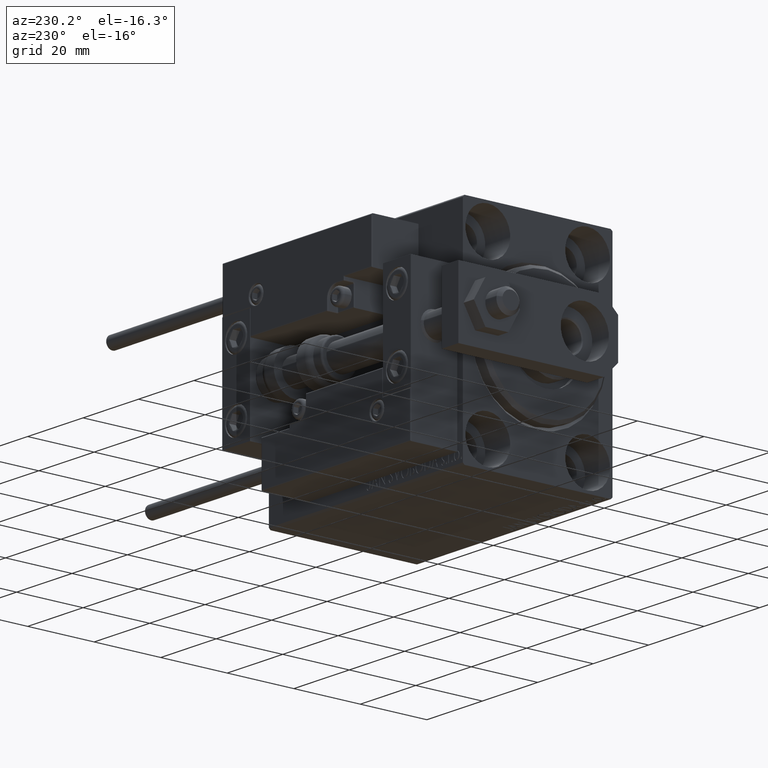
[diagram: clean part render]
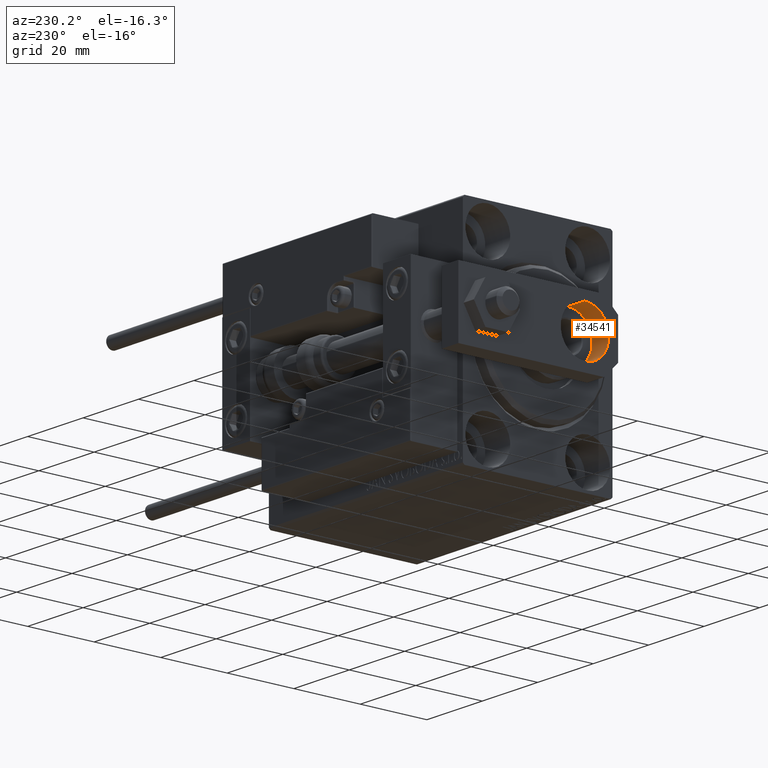
[diagram: same view with one face highlighted and labeled with its STEP entity id]
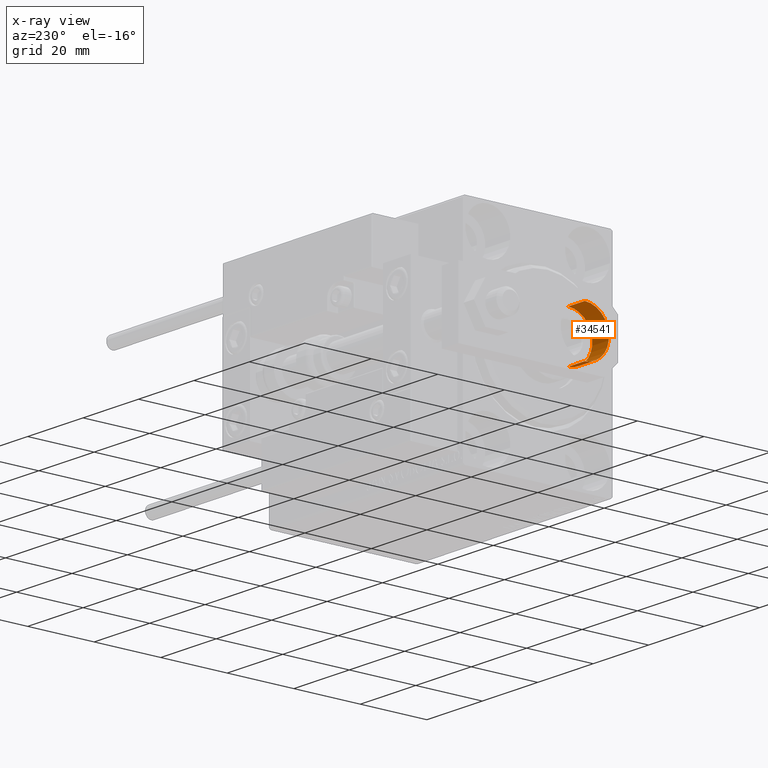
[diagram: x-ray of the same camera — body ghosted, the highlighted face saturated]
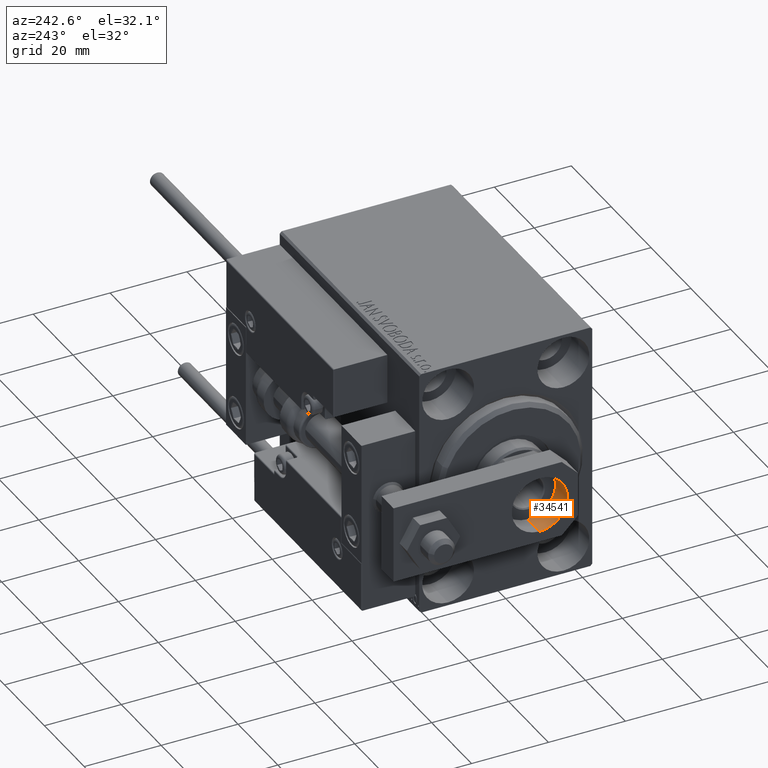
[diagram: same view with one face highlighted and labeled with its STEP entity id]
A machine part, auxiliary view. The second image highlights one B-rep face of the part: STEP entity #34541.
The next image is the same camera in x-ray: the body ghosted, the highlighted face saturated — about 0% of this face is hidden behind the body in this view.
A second angle (auxiliary view) of the same face is appended — the face is thin or edge-on in the first view.
In plain terms, the highlighted cylindrical surface (edge-blend (fillet) strip) has radius 7.25 mm, axis along (1, -0, -0).
Its self-contained STEP definition (entity closure, byte-faithful):
#53 = CIRCLE ( 'NONE', #39727, 7.250000000000000000 ) ;
#642 = CARTESIAN_POINT ( 'NONE',  ( -7.250000000000000000, 10.00000000000000178, 0.000000000000000000 ) ) ;
#727 = EDGE_LOOP ( 'NONE', ( #41871, #7952, #36905, #32585 ) ) ;
#2053 = CARTESIAN_POINT ( 'NONE',  ( -9.629649721936179265E-32, 10.00000000000000178, 6.000000000000000000 ) ) ;
#2709 = CARTESIAN_POINT ( 'NONE',  ( -9.629649721936179265E-32, 10.00000000000000178, 6.000000000000000000 ) ) ;
#2835 = VERTEX_POINT ( 'NONE', #22040 ) ;
#3086 = CARTESIAN_POINT ( 'NONE',  ( 7.250000000000000000, 10.00000000000000355, 6.000000000000000000 ) ) ;
#4104 = CIRCLE ( 'NONE', #47017, 7.250000000000000000 ) ;
#6525 = DIRECTION ( 'NONE',  ( -0.000000000000000000, -0.000000000000000000, -1.000000000000000000 ) ) ;
#7952 = ORIENTED_EDGE ( 'NONE', *, *, #40499, .T. ) ;
#9323 = VERTEX_POINT ( 'NONE', #30840 ) ;
#9687 = DIRECTION ( 'NONE',  ( 1.000000000000000000, 0.000000000000000000, 0.000000000000000000 ) ) ;
#11080 = FACE_OUTER_BOUND ( 'NONE', #727, .T. ) ;
#11498 = CARTESIAN_POINT ( 'NONE',  ( -9.629649721936179265E-32, 10.00000000000000178, 0.000000000000000000 ) ) ;
#14552 = DIRECTION ( 'NONE',  ( 1.000000000000000000, 0.000000000000000000, 0.000000000000000000 ) ) ;
#14600 = CARTESIAN_POINT ( 'NONE',  ( -7.250000000000000000, 10.00000000000000178, 6.000000000000000000 ) ) ;
#16864 = CARTESIAN_POINT ( 'NONE',  ( 7.250000000000000000, 10.00000000000000355, 6.000000000000000000 ) ) ;
#17289 = DIRECTION ( 'NONE',  ( 0.000000000000000000, 0.000000000000000000, 1.000000000000000000 ) ) ;
#18192 = DIRECTION ( 'NONE',  ( -1.000000000000000000, 0.000000000000000000, 0.000000000000000000 ) ) ;
#21741 = CYLINDRICAL_SURFACE ( 'NONE', #43409, 7.250000000000000000 ) ;
#21850 = VECTOR ( 'NONE', #30079, 1000.000000000000000 ) ;
#21948 = LINE ( 'NONE', #14600, #21850 ) ;
#22040 = CARTESIAN_POINT ( 'NONE',  ( 7.250000000000000000, 10.00000000000000355, 0.000000000000000000 ) ) ;
#22163 = EDGE_CURVE ( 'NONE', #9323, #45449, #21948, .T. ) ;
#26428 = DIRECTION ( 'NONE',  ( -0.000000000000000000, -0.000000000000000000, -1.000000000000000000 ) ) ;
#26973 = DIRECTION ( 'NONE',  ( 0.000000000000000000, 0.000000000000000000, 1.000000000000000000 ) ) ;
#30079 = DIRECTION ( 'NONE',  ( -0.000000000000000000, -0.000000000000000000, -1.000000000000000000 ) ) ;
#30840 = CARTESIAN_POINT ( 'NONE',  ( -7.250000000000000000, 10.00000000000000178, 6.000000000000000000 ) ) ;
#32585 = ORIENTED_EDGE ( 'NONE', *, *, #22163, .F. ) ;
#34541 = ADVANCED_FACE ( 'NONE', ( #11080 ), #21741, .F. ) ;
#36905 = ORIENTED_EDGE ( 'NONE', *, *, #48032, .F. ) ;
#37323 = LINE ( 'NONE', #3086, #37844 ) ;
#37844 = VECTOR ( 'NONE', #26428, 1000.000000000000000 ) ;
#39727 = AXIS2_PLACEMENT_3D ( 'NONE', #11498, #26973, #14552 ) ;
#40499 = EDGE_CURVE ( 'NONE', #42788, #2835, #37323, .T. ) ;
#41871 = ORIENTED_EDGE ( 'NONE', *, *, #48253, .T. ) ;
#42788 = VERTEX_POINT ( 'NONE', #16864 ) ;
#43409 = AXIS2_PLACEMENT_3D ( 'NONE', #2709, #6525, #18192 ) ;
#45449 = VERTEX_POINT ( 'NONE', #642 ) ;
#47017 = AXIS2_PLACEMENT_3D ( 'NONE', #2053, #17289, #9687 ) ;
#48032 = EDGE_CURVE ( 'NONE', #45449, #2835, #53, .T. ) ;
#48253 = EDGE_CURVE ( 'NONE', #9323, #42788, #4104, .T. ) ;